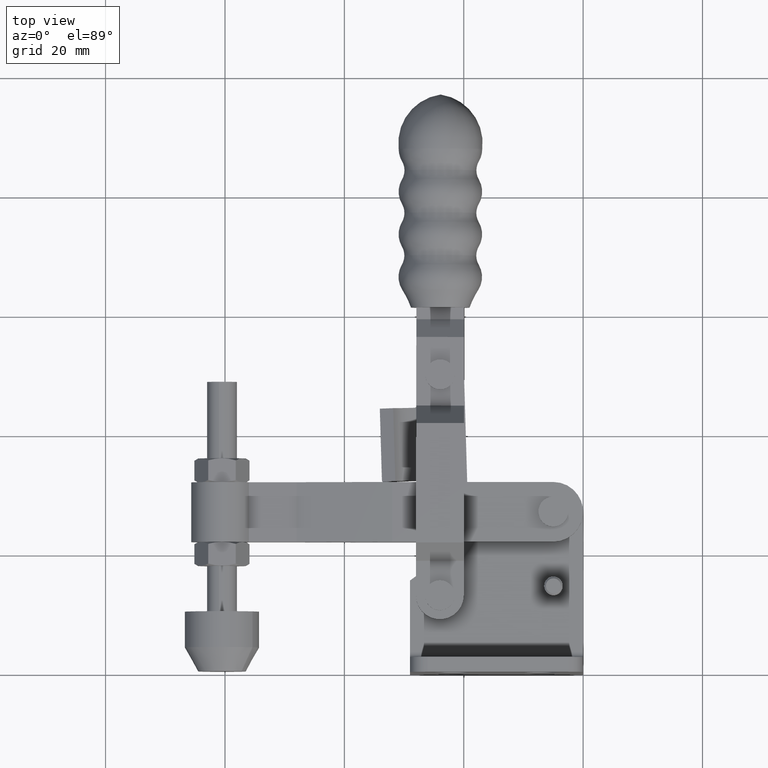
[diagram: clean part render]
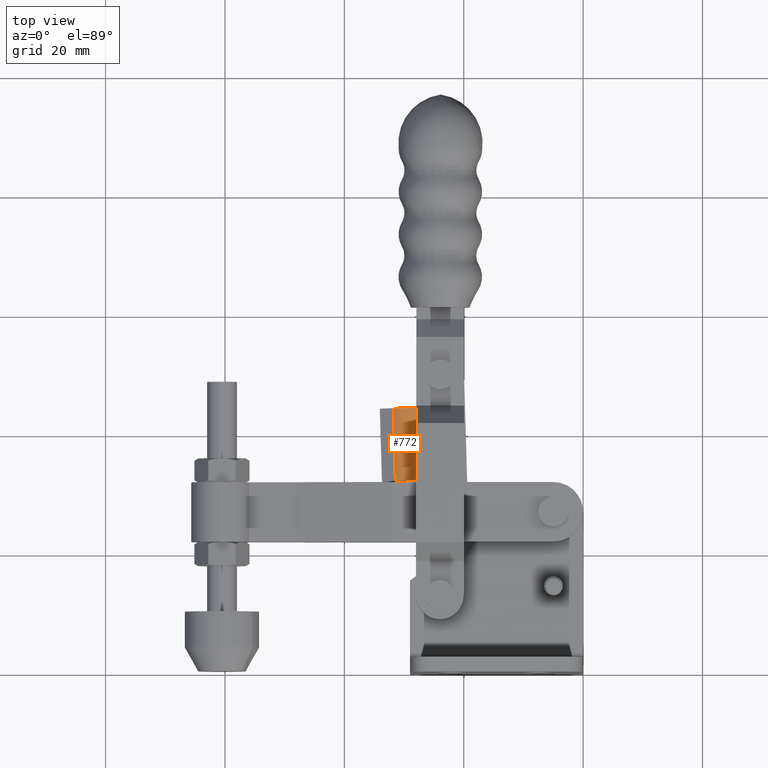
[diagram: same view with one face highlighted and labeled with its STEP entity id]
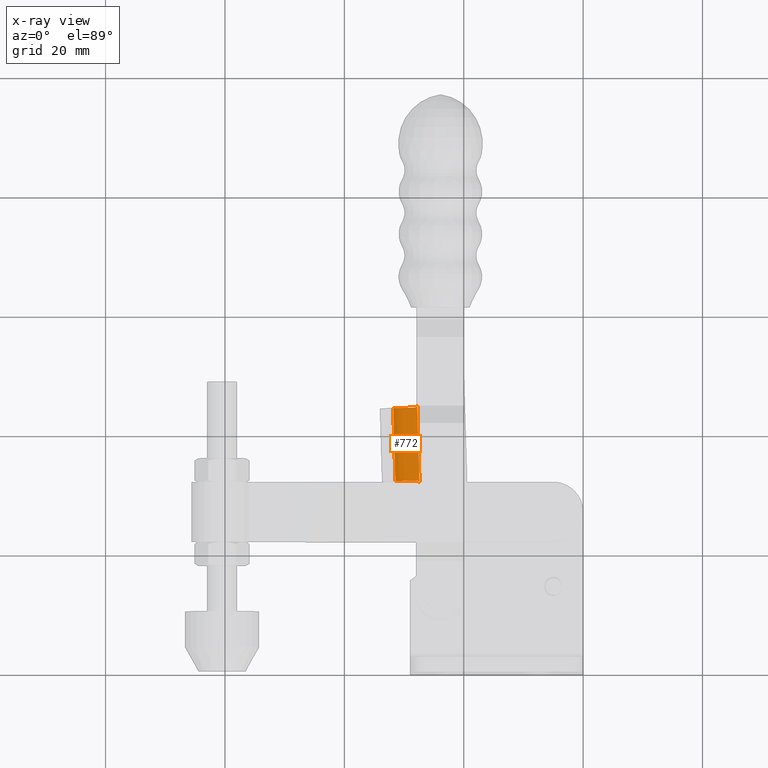
[diagram: x-ray of the same camera — body ghosted, the highlighted face saturated]
A machine part, top view. The second image highlights one B-rep face of the part: STEP entity #772.
The next image is the same camera in x-ray: the body ghosted, the highlighted face saturated — about 0% of this face is hidden behind the body in this view.
In plain terms, the highlighted cylindrical surface (edge-blend (fillet) strip) has radius 4.5 mm, axis along (0.0295, -0.9996, 0).
Its self-contained STEP definition (entity closure, byte-faithful):
#301 = CARTESIAN_POINT ( 'NONE',  ( -27.80303614554016900, 44.98398407759602000, 2.500000019098202100 ) ) ;
#347 = CYLINDRICAL_SURFACE ( 'NONE', #2135, 4.500000000000315300 ) ;
#487 = CARTESIAN_POINT ( 'NONE',  ( -28.06584932061936400, 53.88010285125255200, 2.500000019098190600 ) ) ;
#611 = B_SPLINE_CURVE_WITH_KNOTS ( 'NONE', 3,
 ( #1580, #6031, #4583, #6790, #2337, #7489 ),
 .UNSPECIFIED., .F., .F.,
 ( 4, 2, 4 ),
 ( 4.583906262110895700E-017, 0.0003913918655655094500, 0.0007827837311309730400 ),
 .UNSPECIFIED. ) ;
#635 = CIRCLE ( 'NONE', #3433, 4.500000000000315300 ) ;
#760 = B_SPLINE_CURVE_WITH_KNOTS ( 'NONE', 3,
 ( #4172, #4885, #5630, #1141, #6350, #1904 ),
 .UNSPECIFIED., .F., .F.,
 ( 4, 2, 4 ),
 ( 1.430489624538136000E-017, 0.0003910300154596771600, 0.0007820600309193400100 ),
 .UNSPECIFIED. ) ;
#772 = ADVANCED_FACE ( 'NONE', ( #2634 ), #347, .F. ) ;
#976 = CARTESIAN_POINT ( 'NONE',  ( -27.26768875081201700, 26.86269313685691200, 2.500000019098220800 ) ) ;
#1127 = EDGE_CURVE ( 'NONE', #3629, #9431, #5251, .T. ) ;
#1141 = CARTESIAN_POINT ( 'NONE',  ( -27.66501556342567300, 32.21849014606222300, 2.505423522228075800 ) ) ;
#1368 = CARTESIAN_POINT ( 'NONE',  ( -28.06543491300110600, 53.88011509387038700, 2.500000000000017800 ) ) ;
#1580 = CARTESIAN_POINT ( 'NONE',  ( -28.28805331308577900, 44.46943730797766400, 2.527910416852197100 ) ) ;
#1622 = CARTESIAN_POINT ( 'NONE',  ( -28.06543491300110600, 53.88011509387035900, 7.000000000000334000 ) ) ;
#1658 = ORIENTED_EDGE ( 'NONE', *, *, #7274, .F. ) ;
#1784 = ORIENTED_EDGE ( 'NONE', *, *, #6814, .F. ) ;
#1898 = VERTEX_POINT ( 'NONE', #4086 ) ;
#1904 = CARTESIAN_POINT ( 'NONE',  ( -27.92749729237278800, 32.26476203165821500, 2.527910420314242800 ) ) ;
#1986 = VERTEX_POINT ( 'NONE', #4417 ) ;
#2033 = VERTEX_POINT ( 'NONE', #8231 ) ;
#2064 = CARTESIAN_POINT ( 'NONE',  ( -27.94773103968489300, 49.88184722264287500, 2.500000019098195500 ) ) ;
#2135 = AXIS2_PLACEMENT_3D ( 'NONE', #1622, #6819, #3303 ) ;
#2159 = VECTOR ( 'NONE', #9692, 1000.000000000000200 ) ;
#2337 = CARTESIAN_POINT ( 'NONE',  ( -27.79917743939174500, 44.85336872227525600, 2.500000019097455600 ) ) ;
#2420 = AXIS2_PLACEMENT_3D ( 'NONE', #7468, #3101, #8221 ) ;
#2485 = ORIENTED_EDGE ( 'NONE', *, *, #3867, .F. ) ;
#2502 = DIRECTION ( 'NONE',  ( 0.02952957023361651300, -0.9995639071524230500, 1.105914276080391600E-015 ) ) ;
#2569 = CARTESIAN_POINT ( 'NONE',  ( -27.94901722139174500, 49.93942372023673900, 2.500000000000022200 ) ) ;
#2602 = CARTESIAN_POINT ( 'NONE',  ( -27.26614063166600500, 26.82432970670735600, 2.500000000000048000 ) ) ;
#2634 = FACE_OUTER_BOUND ( 'NONE', #3405, .T. ) ;
#2835 = EDGE_CURVE ( 'NONE', #6595, #4236, #6846, .T. ) ;
#3101 = DIRECTION ( 'NONE',  ( 0.02952957023361652000, -0.9995639071524232700, 1.105914276080391800E-015 ) ) ;
#3259 = CARTESIAN_POINT ( 'NONE',  ( -32.09480584068087700, 53.76107759066037800, 5.000000000000010700 ) ) ;
#3298 = CARTESIAN_POINT ( 'NONE',  ( -27.26698371529486300, 26.84350813854137400, 2.500000000000048000 ) ) ;
#3303 = DIRECTION ( 'NONE',  ( -0.9995639071524231600, -0.02952957023361633300, -1.541976423090387200E-015 ) ) ;
#3368 = EDGE_CURVE ( 'NONE', #4236, #6134, #611, .T. ) ;
#3405 = EDGE_LOOP ( 'NONE', ( #7079, #5187, #1658, #1784, #8878, #8865, #5102, #2485, #4525, #7120 ) ) ;
#3433 = AXIS2_PLACEMENT_3D ( 'NONE', #3491, #8627, #4259 ) ;
#3491 = CARTESIAN_POINT ( 'NONE',  ( -27.42730090025265700, 32.27953906030643300, 7.000000000000357900 ) ) ;
#3557 = VERTEX_POINT ( 'NONE', #2569 ) ;
#3606 = CARTESIAN_POINT ( 'NONE',  ( -27.94829791748226500, 49.90103580485158800, 2.500000019098195500 ) ) ;
#3629 = VERTEX_POINT ( 'NONE', #6374 ) ;
#3658 = DIRECTION ( 'NONE',  ( 0.02952957023361651300, -0.9995639071524230500, 1.105914276080391600E-015 ) ) ;
#3867 = EDGE_CURVE ( 'NONE', #6134, #1898, #4193, .T. ) ;
#4086 = CARTESIAN_POINT ( 'NONE',  ( -27.94773103968489300, 49.88184722264287500, 2.500000019098195500 ) ) ;
#4172 = CARTESIAN_POINT ( 'NONE',  ( -27.41295052275411600, 31.77974486411248700, 2.500000019098215000 ) ) ;
#4193 = LINE ( 'NONE', #4543, #2159 ) ;
#4236 = VERTEX_POINT ( 'NONE', #8692 ) ;
#4259 = DIRECTION ( 'NONE',  ( -0.9995639071524231600, -0.02952957023361633300, 1.927470528862984000E-016 ) ) ;
#4401 = CARTESIAN_POINT ( 'NONE',  ( -27.94901722139174500, 49.93942372023673900, 2.500000000000022200 ) ) ;
#4417 = CARTESIAN_POINT ( 'NONE',  ( -31.45667182793242100, 32.16050155709646000, 5.000000000000015100 ) ) ;
#4525 = ORIENTED_EDGE ( 'NONE', *, *, #3368, .F. ) ;
#4543 = CARTESIAN_POINT ( 'NONE',  ( -28.06584932061936400, 53.88010285125255200, 2.500000019098190600 ) ) ;
#4583 = CARTESIAN_POINT ( 'NONE',  ( -28.02885054875055800, 44.53103206291737600, 2.505426665150384500 ) ) ;
#4865 = EDGE_CURVE ( 'NONE', #1898, #3557, #8106, .T. ) ;
#4885 = CARTESIAN_POINT ( 'NONE',  ( -27.41685491070418800, 31.91190680359977300, 2.500000019098214600 ) ) ;
#5102 = ORIENTED_EDGE ( 'NONE', *, *, #4865, .F. ) ;
#5187 = ORIENTED_EDGE ( 'NONE', *, *, #7761, .F. ) ;
#5251 = B_SPLINE_CURVE_WITH_KNOTS ( 'NONE', 3,
 ( #2602, #3298, #976, #5352 ),
 .UNSPECIFIED., .F., .F.,
 ( 4, 4 ),
 ( 0.0000000000000000000, 5.759086158893693700E-005 ),
 .UNSPECIFIED. ) ;
#5352 = CARTESIAN_POINT ( 'NONE',  ( -27.26825562860938500, 26.88188171906561800, 2.500000019098220300 ) ) ;
#5630 = CARTESIAN_POINT ( 'NONE',  ( -27.47495937623891700, 32.03955204170494400, 2.499384275950153000 ) ) ;
#5777 = DIRECTION ( 'NONE',  ( -0.02952957023361651300, 0.9995639071524230500, -1.105914276080391600E-015 ) ) ;
#5822 = EDGE_CURVE ( 'NONE', #3557, #3629, #9556, .T. ) ;
#5976 = LINE ( 'NONE', #487, #6198 ) ;
#6031 = CARTESIAN_POINT ( 'NONE',  ( -28.15660059067810300, 44.47332074391504600, 2.513194799502774100 ) ) ;
#6134 = VERTEX_POINT ( 'NONE', #301 ) ;
#6198 = VECTOR ( 'NONE', #5777, 1000.000000000000200 ) ;
#6311 = VECTOR ( 'NONE', #2502, 1000.000000000000200 ) ;
#6350 = CARTESIAN_POINT ( 'NONE',  ( -27.79615779687855300, 32.26864213072898500, 2.513207477326945500 ) ) ;
#6374 = CARTESIAN_POINT ( 'NONE',  ( -27.26614063166600500, 26.82432970670735600, 2.500000000000048000 ) ) ;
#6595 = VERTEX_POINT ( 'NONE', #7537 ) ;
#6790 = CARTESIAN_POINT ( 'NONE',  ( -27.84952190093229900, 44.72104835926698000, 2.499381535000543900 ) ) ;
#6814 = EDGE_CURVE ( 'NONE', #9431, #7092, #5976, .T. ) ;
#6819 = DIRECTION ( 'NONE',  ( 0.02952957023361651300, -0.9995639071524230500, 1.105914276080391600E-015 ) ) ;
#6846 = CIRCLE ( 'NONE', #2420, 4.500000000000315300 ) ;
#7071 = CARTESIAN_POINT ( 'NONE',  ( -27.26825562860938500, 26.88188171906561800, 2.500000019098220300 ) ) ;
#7079 = ORIENTED_EDGE ( 'NONE', *, *, #8786, .T. ) ;
#7092 = VERTEX_POINT ( 'NONE', #9075 ) ;
#7120 = ORIENTED_EDGE ( 'NONE', *, *, #2835, .F. ) ;
#7274 = EDGE_CURVE ( 'NONE', #7092, #2033, #760, .T. ) ;
#7468 = CARTESIAN_POINT ( 'NONE',  ( -27.78785695189150200, 44.48421433571221700, 7.000000000000341100 ) ) ;
#7489 = CARTESIAN_POINT ( 'NONE',  ( -27.80303614554016900, 44.98398407759602000, 2.500000019098202100 ) ) ;
#7537 = CARTESIAN_POINT ( 'NONE',  ( -31.81722787957128100, 44.36517683250227200, 5.000000000000005300 ) ) ;
#7568 = VECTOR ( 'NONE', #3658, 1000.000000000000200 ) ;
#7761 = EDGE_CURVE ( 'NONE', #2033, #1986, #635, .T. ) ;
#8106 = B_SPLINE_CURVE_WITH_KNOTS ( 'NONE', 3,
 ( #2064, #3606, #8789, #4401 ),
 .UNSPECIFIED., .F., .F.,
 ( 4, 4 ),
 ( 0.0000000000000000000, 5.759086158897156400E-005 ),
 .UNSPECIFIED. ) ;
#8221 = DIRECTION ( 'NONE',  ( 0.9995639071524231600, 0.02952957023361633300, -1.156482317317790300E-015 ) ) ;
#8231 = CARTESIAN_POINT ( 'NONE',  ( -27.92749729237278800, 32.26476203165821500, 2.527910420314242800 ) ) ;
#8259 = LINE ( 'NONE', #3259, #6311 ) ;
#8627 = DIRECTION ( 'NONE',  ( -0.02952957023361652000, 0.9995639071524232700, -1.105914276080390800E-015 ) ) ;
#8692 = CARTESIAN_POINT ( 'NONE',  ( -28.28805331308577900, 44.46943730797766400, 2.527910416852197100 ) ) ;
#8786 = EDGE_CURVE ( 'NONE', #6595, #1986, #8259, .T. ) ;
#8789 = CARTESIAN_POINT ( 'NONE',  ( -27.94872666693634900, 49.92022896533531200, 2.500000000000022200 ) ) ;
#8865 = ORIENTED_EDGE ( 'NONE', *, *, #5822, .F. ) ;
#8878 = ORIENTED_EDGE ( 'NONE', *, *, #1127, .F. ) ;
#9075 = CARTESIAN_POINT ( 'NONE',  ( -27.41295052275411600, 31.77974486411248700, 2.500000019098215000 ) ) ;
#9431 = VERTEX_POINT ( 'NONE', #7071 ) ;
#9556 = LINE ( 'NONE', #1368, #7568 ) ;
#9692 = DIRECTION ( 'NONE',  ( -0.02952957023361651300, 0.9995639071524230500, -1.105914276080391600E-015 ) ) ;